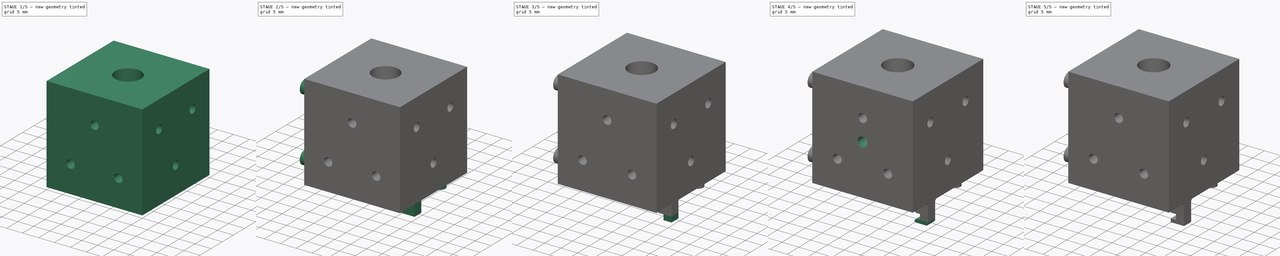
[diagram: build sequence overview — one tinted view per stage of 5, left to right]
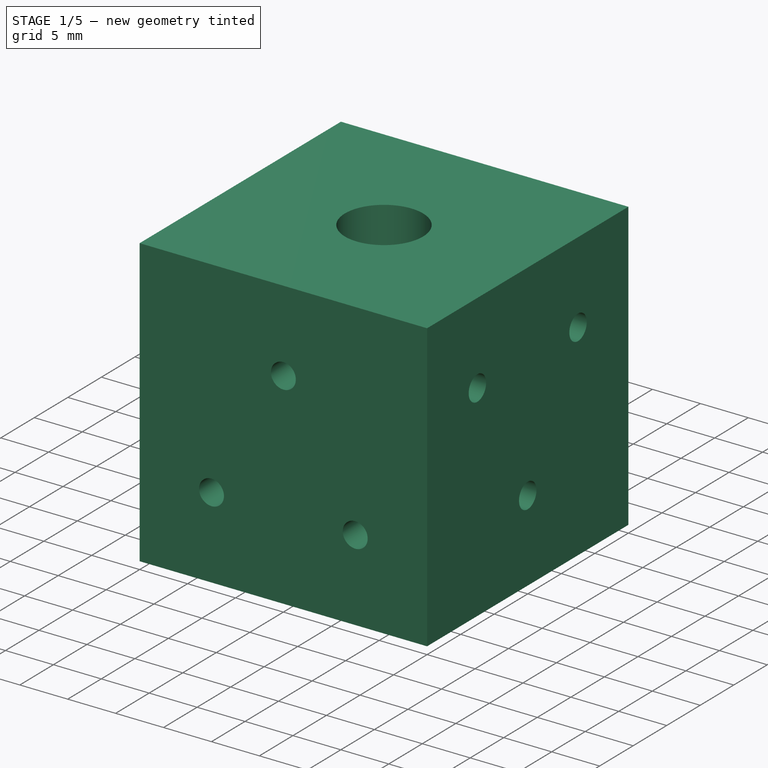
[diagram: stage 1 of 5 — iso view after this stage's code; geometry added in this stage tinted green]
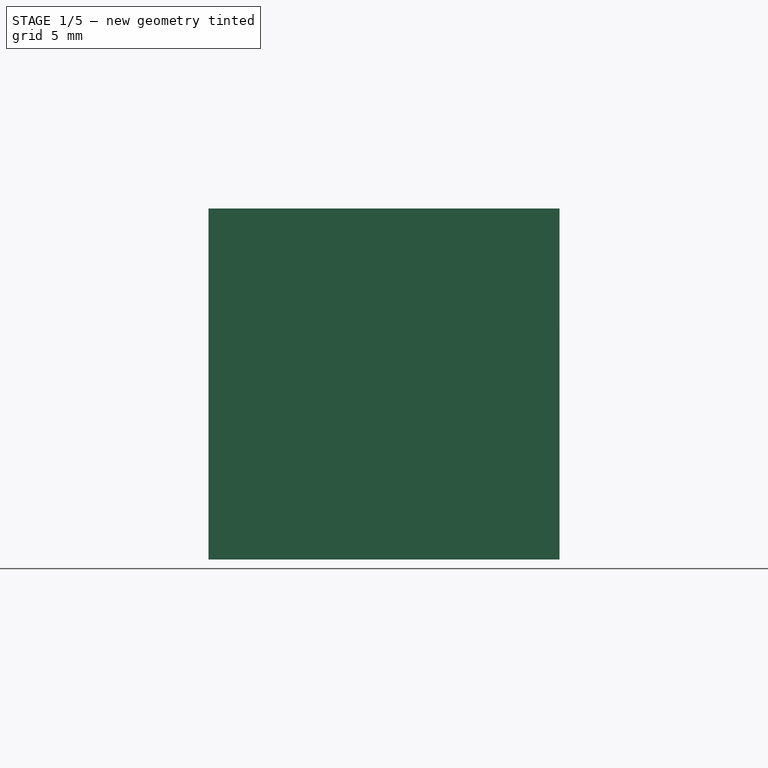
[diagram: stage 1 of 5 — front view after this stage's code; geometry added in this stage tinted green]
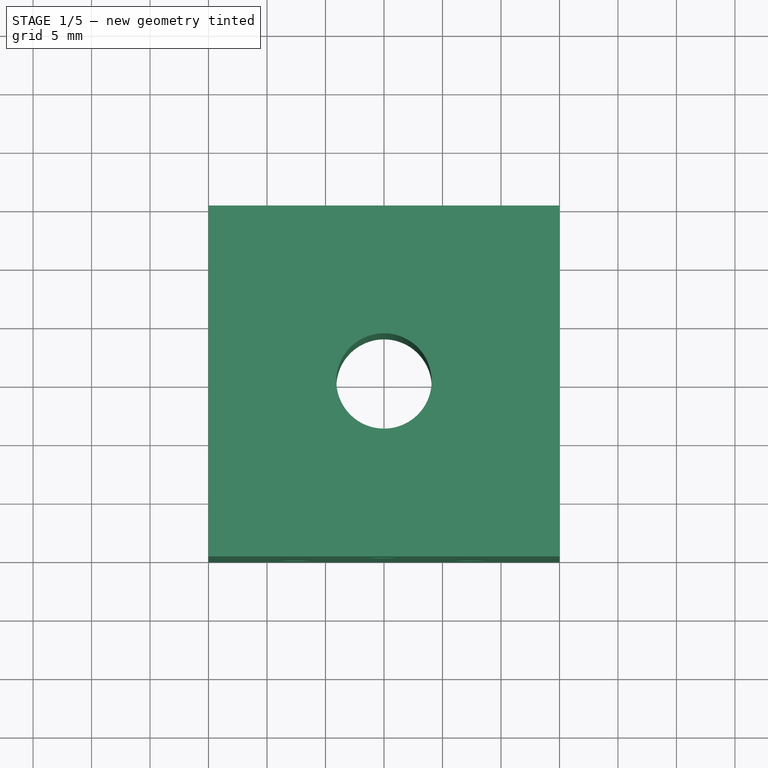
[diagram: stage 1 of 5 — top view after this stage's code; geometry added in this stage tinted green]
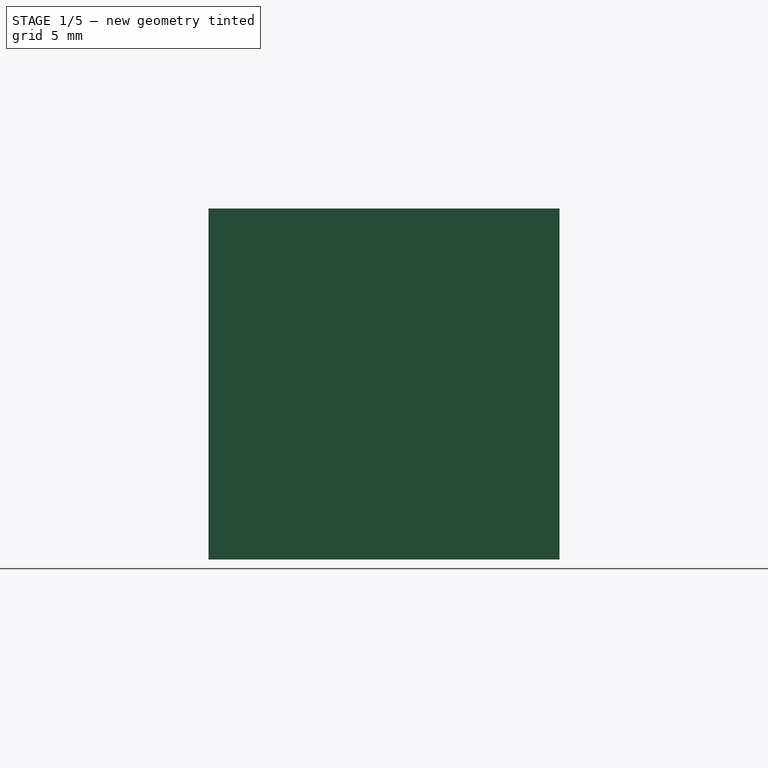
[diagram: stage 1 of 5 — right view after this stage's code; geometry added in this stage tinted green]
FCSTD DOCUMENT  (FreeCAD 0.18R16110 (Git))
Label: Cuerpo
License: All rights reserved
LicenseURL: http://en.wikipedia.org/wiki/All_rights_reserved
objects: Sketcher::SketchObject×17, PartDesign::Pocket×12, PartDesign::Pad×5, PartDesign::PolarPattern×1, PartDesign::Line×1, PartDesign::Chamfer×1, PartDesign::Body×1
note: 55 computed .brp shape members not serialized (recipe doc carries the construction recipe); baked Part::Feature solids carry a one-line shape summary decoded from their .brp

FEATURE [Sketcher::SketchObject] Sketch105
  MapMode = 5
  Placement = pos=(0,0,30) rot=(0,0,1;0rad)
  sketch-geometry (12):
    g0: LineSegment [constr] StartX=-15 StartY=15 StartZ=0 EndX=15 EndY=15 EndZ=0
    g1: LineSegment [constr] StartX=15 StartY=15 StartZ=0 EndX=15 EndY=-15 EndZ=0
    g2: LineSegment [constr] StartX=15 StartY=-15 StartZ=0 EndX=-15 EndY=-15 EndZ=0
    g3: LineSegment [constr] StartX=-15 StartY=-15 StartZ=0 EndX=-15 EndY=15 EndZ=0
    g4: LineSegment [constr] StartX=15 StartY=15 StartZ=0 EndX=-15 EndY=-15 EndZ=0
    g5: LineSegment [constr] StartX=15 StartY=-15 StartZ=0 EndX=0 EndY=0 EndZ=0
    g6: LineSegment [constr] StartX=0.424621 StartY=0.424621 StartZ=0 EndX=0.424621 EndY=-0.424621 EndZ=0
    g7: LineSegment [constr] StartX=0.424621 StartY=-0.424621 StartZ=0 EndX=-0.424621 EndY=-0.424621 EndZ=0
    g8: Circle CenterX=0.424621 CenterY=-0.424621 CenterZ=0 NormalX=0 NormalY=0 NormalZ=1 AngleXU=0 Radius=1.45
    g9: Circle CenterX=-0.424621 CenterY=-0.424621 CenterZ=0 NormalX=0 NormalY=0 NormalZ=1 AngleXU=0 Radius=1.45
    g10: Circle CenterX=0.424621 CenterY=0.424621 CenterZ=0 NormalX=0 NormalY=0 NormalZ=1 AngleXU=0 Radius=1.45
    g11: GeomPoint X=-7 Y=7 Z=0
  constraints (30):
    c: Coincident(g0,g1)
    c: Coincident(g1,g2)
    c: Coincident(g2,g3)
    c: Coincident(g3,g0)
    c: Horizontal(g0)
    c: Horizontal(g2)
    c: Vertical(g1)
    c: Vertical(g3)
    c: DistanceX(g2,g2) = 30
    c: DistanceY(g3,g3) = 30
    c: DistanceX(g0,g-1) = 15
    c: DistanceY(g-1,g0) = 15
    c: Coincident(g4,g0)
    c: Coincident(g4,g2)
    c: Coincident(g5,g-1)
    c: Coincident(g5,g1)
    c: PointOnObject(g7,g4)
    c: PointOnObject(g6,g5)
    c: Coincident(g7,g6)
    c: PointOnObject(g6,g4)
    c: Vertical(g6)
    c: Horizontal(g7)
    c: Radius(g10) = 1.45
    c: Radius(g8) = 1.45
    c: Radius(g9) = 1.45
    c: Coincident(g9,g7)
    c: Coincident(g8,g6)
    c: Coincident(g10,g6)
    c: PointOnObject(g11,g5)
    c: Distance(g11,g8) = 10.5
FEATURE [Sketcher::SketchObject] Sketch124
  MapMode = 5
  Support = -> [XY_Plane001]
  sketch-geometry (6):
    g0: LineSegment StartX=-15 StartY=15 StartZ=0 EndX=15 EndY=15 EndZ=0
    g1: LineSegment StartX=15 StartY=15 StartZ=0 EndX=15 EndY=-15 EndZ=0
    g2: LineSegment StartX=15 StartY=-15 StartZ=0 EndX=-15 EndY=-15 EndZ=0
    g3: LineSegment StartX=-15 StartY=-15 StartZ=0 EndX=-15 EndY=15 EndZ=0
    g4: ArcOfCircle CenterX=0 CenterY=0 CenterZ=0 NormalX=0 NormalY=0 NormalZ=1 AngleXU=0 Radius=4.075 StartAngle=1.81873 EndAngle=7.60605
    g5: ArcOfCircle CenterX=0 CenterY=0 CenterZ=0 NormalX=0 NormalY=0 NormalZ=1 AngleXU=0 Radius=4.075 StartAngle=1.32287 EndAngle=1.81873
  constraints (17):
    c: Coincident(g1,g2)
    c: Coincident(g2,g3)
    c: Coincident(g3,g0)
    c: Horizontal(g2)
    c: Vertical(g1)
    c: DistanceY(g1,g1) = 30
    c: DistanceX(g2,g2) = 30
    c: Symmetric(g0,g2,g-1)
    c: Symmetric(g0,g1,g-2)
    c: Coincident(g4,g-1)
    c: Symmetric(g4,g4,g-2)
    c: DistanceX(g4,g4) = 2
    c: Coincident(g0,g1)
    c: Coincident(g5,g4)
    c: Coincident(g4,g5)
    c: Coincident(g5,g4)
    c: Diameter(g4) = 8.15
FEATURE [PartDesign::Pad] Pad
  Length = 30
  Length2 = 100
  Offset = 13
  Profile = -> Sketch124
  Type = 0
FEATURE [Sketcher::SketchObject] Sketch007
  MapMode = 5
  Placement = pos=(15,0,0) rot=(0.57735,0.57735,0.57735;2.0944rad)
  Support = -> [Pad]
  sketch-geometry (4):
    g0: Circle CenterX=-7.5 CenterY=21.5 CenterZ=0 NormalX=0 NormalY=0 NormalZ=1 AngleXU=0 Radius=1.3
    g1: Circle CenterX=7.5 CenterY=21.5 CenterZ=0 NormalX=0 NormalY=0 NormalZ=1 AngleXU=0 Radius=1.3
    g2: Circle CenterX=0 CenterY=8.5 CenterZ=0 NormalX=0 NormalY=0 NormalZ=1 AngleXU=0 Radius=1.3
    g3: LineSegment [constr] StartX=-7.5 StartY=21.5 StartZ=0 EndX=7.5 EndY=21.5 EndZ=0
  constraints (10):
    c: DistanceY(g-1,g2) = 8.5
    c: Radius(g2) = 1.3
    c: Radius(g1) = 1.3
    c: Radius(g0) = 1.3
    c: Coincident(g1,g3)
    c: Coincident(g3,g0)
    c: Symmetric(g1,g0,g-2)
    c: DistanceY(g-1,g1) = 21.5
    c: DistanceX(g0,g1) = 15
    c: PointOnObject(g2,g-2)
FEATURE [PartDesign::Pocket] Pocket
  BaseFeature = -> Pad
  Length = 8
  Length2 = 100
  Profile = -> Sketch007
  Type = 0
FEATURE [Sketcher::SketchObject] Sketch002
  MapMode = 5
  Placement = pos=(0,-15,0) rot=(1,0,0;1.5708rad)
  Support = -> [Pocket]
  sketch-geometry (4):
    g0: Circle CenterX=0 CenterY=21.5 CenterZ=0 NormalX=0 NormalY=0 NormalZ=1 AngleXU=0 Radius=1.3
    g1: Circle CenterX=-7.5 CenterY=8.5 CenterZ=0 NormalX=0 NormalY=0 NormalZ=1 AngleXU=0 Radius=1.3
    g2: Circle CenterX=7.5 CenterY=8.5 CenterZ=0 NormalX=0 NormalY=0 NormalZ=1 AngleXU=0 Radius=1.3
    g3: LineSegment [constr] StartX=-7.5 StartY=8.5 StartZ=0 EndX=7.5 EndY=8.5 EndZ=0
  constraints (10):
    c: Symmetric(g2,g1,g-2)
    c: Coincident(g3,g1)
    c: Coincident(g2,g3)
    c: DistanceX(g1,g2) = 15
    c: DistanceY(g-1,g2) = 8.5
    c: PointOnObject(g0,g-2)
    c: Radius(g0) = 1.3
    c: Radius(g1) = 1.3
    c: Radius(g2) = 1.3
    c: DistanceY(g-1,g0) = 21.5
FEATURE [PartDesign::Pocket] Pocket001
  BaseFeature = -> Pocket
  Length = 8
  Length2 = 100
  Profile = -> Sketch002
  Type = 0
FEATURE [PartDesign::Pocket] Pocket041
  BaseFeature = -> Pocket001
  Length = 5
  Length2 = 100
  Profile = -> Sketch105
  Type = 0
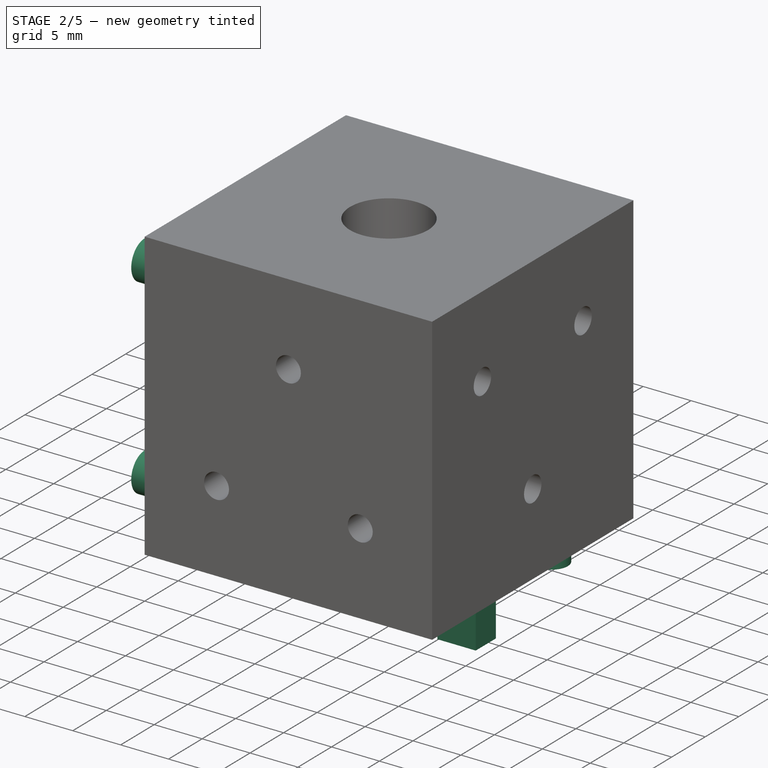
[diagram: stage 2 of 5 — iso view after this stage's code; geometry added in this stage tinted green]
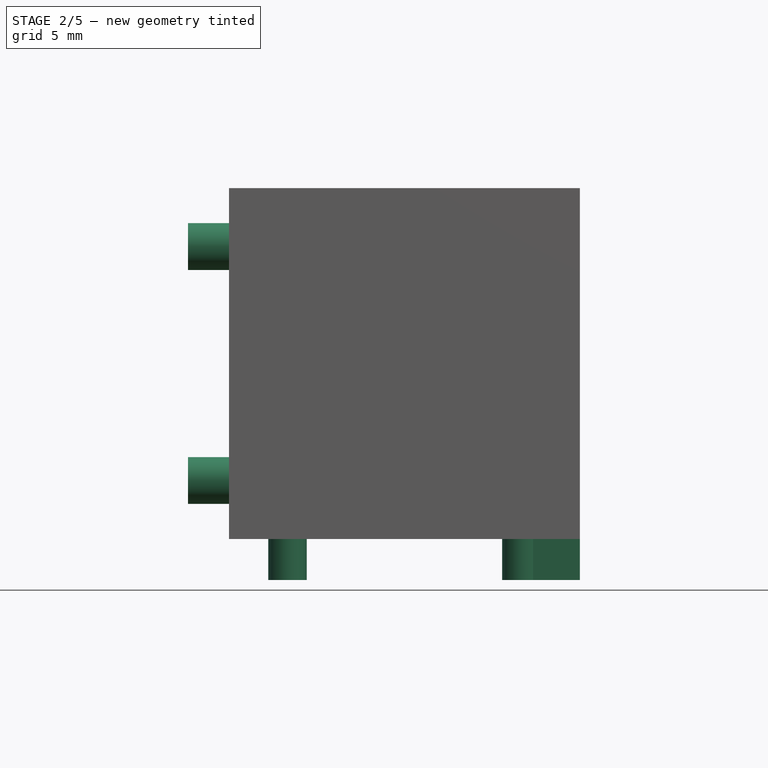
[diagram: stage 2 of 5 — front view after this stage's code; geometry added in this stage tinted green]
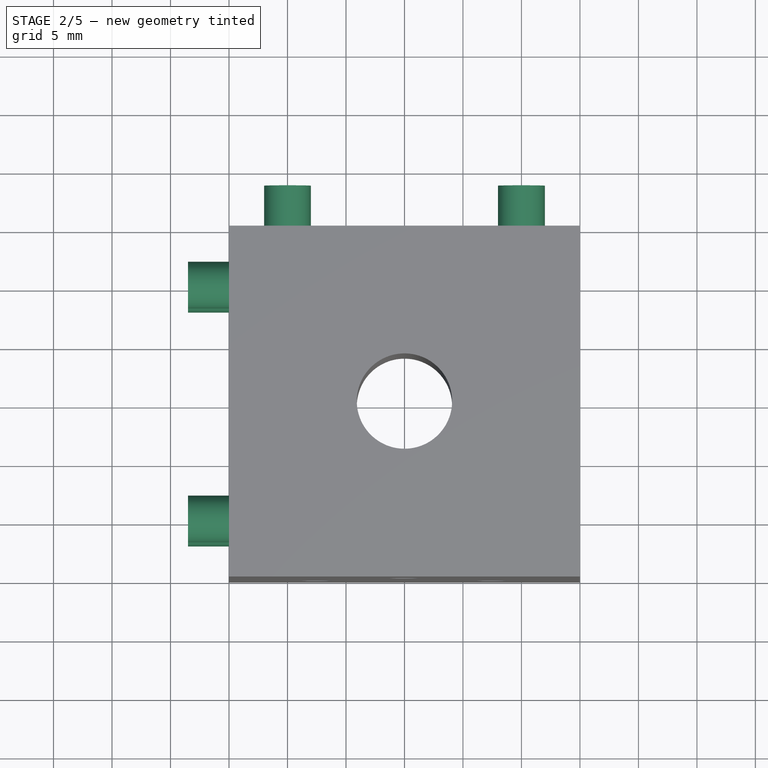
[diagram: stage 2 of 5 — top view after this stage's code; geometry added in this stage tinted green]
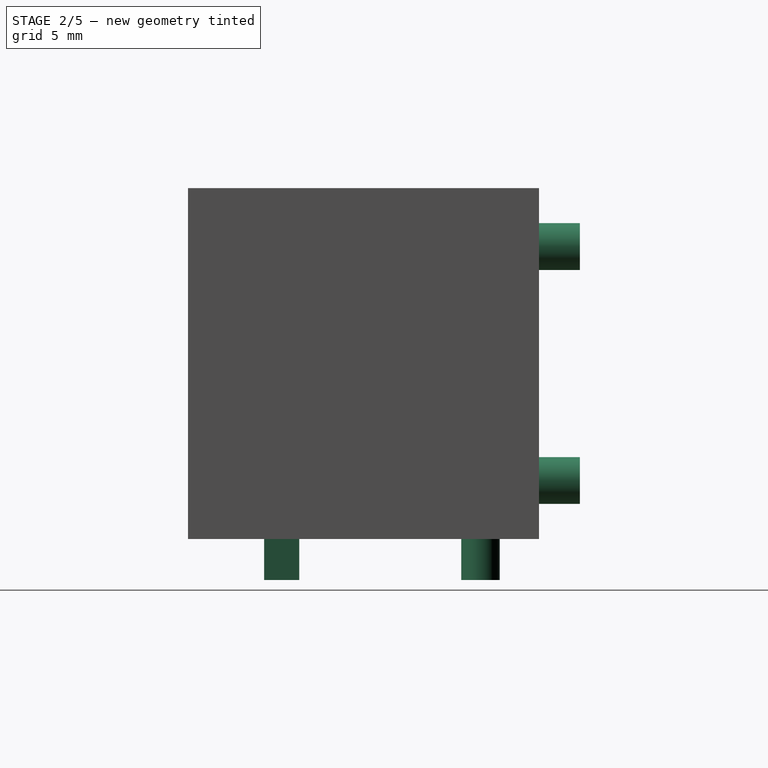
[diagram: stage 2 of 5 — right view after this stage's code; geometry added in this stage tinted green]
FEATURE [Sketcher::SketchObject] Sketch165
  MapMode = 5
  Placement = pos=(0,0,0) rot=(1,0,0;3.14159rad)
  Support = -> [Pocket041]
  sketch-geometry (4):
    g0: LineSegment StartX=-10.15 StartY=8.5 StartZ=0 EndX=10.15 EndY=8.5 EndZ=0
    g1: LineSegment StartX=10.15 StartY=8.5 StartZ=0 EndX=10.15 EndY=-8 EndZ=0
    g2: LineSegment StartX=10.15 StartY=-8 StartZ=0 EndX=-10.15 EndY=-8 EndZ=0
    g3: LineSegment StartX=-10.15 StartY=-8 StartZ=0 EndX=-10.15 EndY=8.5 EndZ=0
  constraints (11):
    c: Coincident(g0,g1)
    c: Coincident(g1,g2)
    c: Coincident(g2,g3)
    c: Coincident(g3,g0)
    c: Horizontal(g2)
    c: Vertical(g1)
    c: Vertical(g3)
    c: DistanceY(g1,g1) = 16.5
    c: DistanceX(g0,g0) = 20.3
    c: Symmetric(g0,g0,g-2)
    c: DistanceY(g-1,g0) = 8.5
FEATURE [Sketcher::SketchObject] Sketch169
  MapMode = 5
  Placement = pos=(0,0,4) rot=(1,0,0;3.14159rad)
  sketch-geometry (4):
    g0: LineSegment StartX=-10 StartY=8.5 StartZ=0 EndX=10 EndY=8.5 EndZ=0
    g1: LineSegment StartX=10 StartY=8.5 StartZ=0 EndX=10 EndY=5.5 EndZ=0
    g2: LineSegment StartX=10 StartY=5.5 StartZ=0 EndX=-10 EndY=5.5 EndZ=0
    g3: LineSegment StartX=-10 StartY=5.5 StartZ=0 EndX=-10 EndY=8.5 EndZ=0
  constraints (8):
    c: Coincident(g0,g1)
    c: Coincident(g1,g2)
    c: Coincident(g2,g3)
    c: Coincident(g3,g0)
    c: Horizontal(g2)
    c: Vertical(g1)
    c: Vertical(g3)
    c: DistanceY(g1,g1) = 3
FEATURE [PartDesign::Pocket] Pocket061
  BaseFeature = -> Pocket041
  Length = 4
  Length2 = 100
  Profile = -> Sketch165
  Type = 0
FEATURE [Sketcher::SketchObject] Sketch
  MapMode = 5
  Placement = pos=(-15,0,0) rot=(0.57735,-0.57735,-0.57735;2.0944rad)
  Support = -> [Pocket061]
  sketch-geometry (9):
    g0: Circle CenterX=-10 CenterY=25 CenterZ=0 NormalX=0 NormalY=0 NormalZ=1 AngleXU=0 Radius=2
    g1: Circle CenterX=-10 CenterY=25 CenterZ=0 NormalX=0 NormalY=0 NormalZ=1 AngleXU=0 Radius=0.975
    g2: GeomPoint X=0 Y=15 Z=0
    g3: Circle CenterX=10 CenterY=25 CenterZ=0 NormalX=0 NormalY=0 NormalZ=1 AngleXU=0 Radius=2
    g4: Circle CenterX=10 CenterY=25 CenterZ=0 NormalX=0 NormalY=0 NormalZ=1 AngleXU=0 Radius=0.975
    g5: Circle CenterX=10 CenterY=5 CenterZ=0 NormalX=0 NormalY=0 NormalZ=1 AngleXU=0 Radius=2
    g6: Circle CenterX=10 CenterY=5 CenterZ=0 NormalX=0 NormalY=0 NormalZ=1 AngleXU=0 Radius=0.975
    g7: Circle CenterX=-10 CenterY=5 CenterZ=0 NormalX=0 NormalY=0 NormalZ=1 AngleXU=0 Radius=2
    g8: Circle CenterX=-10 CenterY=5 CenterZ=0 NormalX=0 NormalY=0 NormalZ=1 AngleXU=0 Radius=0.975
  constraints (22):
    c: Diameter(g1) = 1.95
    c: Diameter(g0) = 4
    c: Coincident(g1,g0)
    c: DistanceX(g0,g-1) = 10
    c: PointOnObject(g2,g-2)
    c: DistanceY(g-1,g2) = 15
    c: DistanceY(g2,g0) = 10
    c: Diameter(g4) = 1.95
    c: Diameter(g3) = 4
    c: Coincident(g4,g3)
    c: Diameter(g6) = 1.95
    c: Diameter(g5) = 4
    c: Coincident(g6,g5)
    c: Diameter(g8) = 1.95
    c: Diameter(g7) = 4
    c: Coincident(g8,g7)
    c: DistanceY(g2,g3) = 10
    c: DistanceX(g2,g3) = 10
    c: DistanceX(g7,g2) = 10
    c: DistanceX(g2,g5) = 10
    c: DistanceY(g7,g2) = 10
    c: DistanceY(g5,g2) = 10
FEATURE [PartDesign::Pad] Pad001
  BaseFeature = -> Pocket061
  Length = 3.5
  Length2 = 100
  Profile = -> Sketch
  Type = 0
FEATURE [PartDesign::PolarPattern] PolarPattern
  Angle = 270
  Axis = -> Z_Axis001
  BaseFeature = -> Pad001
  Occurrences = 2
  Originals = -> [Pad001]
FEATURE [PartDesign::Line] DatumLine
  AttacherType = Attacher::AttachEngineLine
  AttachmentOffset = pos=(0,0,15) rot=(-1,0,0;1.5708rad)
  MapMode = 42
  Placement = pos=(4e-16,0.144737,15) rot=(-1,0,0;1.5708rad)
  Support = -> [Pad001]
FEATURE [Sketcher::SketchObject] Sketch166
  ExternalGeometry = -> [PolarPattern]
  MapMode = 5
  Placement = pos=(0,0,0) rot=(1,0,0;3.14159rad)
  Support = -> [PolarPattern]
  sketch-geometry (8):
    g0: Circle CenterX=-10 CenterY=-10 CenterZ=0 NormalX=0 NormalY=0 NormalZ=1 AngleXU=0 Radius=0.975
    g1: LineSegment StartX=11 StartY=8.5 StartZ=0 EndX=15 EndY=8.5 EndZ=0
    g2: LineSegment StartX=15 StartY=8.5 StartZ=0 EndX=15 EndY=5.5 EndZ=0
    g3: LineSegment StartX=11 StartY=5.5 StartZ=0 EndX=11 EndY=8.5 EndZ=0
    g4: Circle CenterX=10 CenterY=-10 CenterZ=0 NormalX=0 NormalY=0 NormalZ=1 AngleXU=0 Radius=0.975
    g5: LineSegment StartX=15 StartY=5.5 StartZ=0 EndX=11 EndY=5.5 EndZ=0
    g6: Circle CenterX=10 CenterY=-10 CenterZ=0 NormalX=0 NormalY=0 NormalZ=1 AngleXU=0 Radius=1.65
    g7: Circle CenterX=-10 CenterY=-10 CenterZ=0 NormalX=0 NormalY=0 NormalZ=1 AngleXU=0 Radius=1.65
  constraints (21):
    c: Diameter(g0) = 1.95
    c: DistanceX(g0,g-1) = 10
    c: DistanceY(g0,g-1) = 10
    c: Coincident(g1,g2)
    c: Vertical(g2)
    c: Diameter(g4) = 1.95
    c: Coincident(g1,g3)
    c: Horizontal(g1)
    c: PointOnObject(g2,g-4)
    c: DistanceY(g2,g2) = 3
    c: Symmetric(g4,g0,g-2)
    c: Vertical(g3)
    c: Perpendicular(g3,g5)
    c: Coincident(g3,g5)
    c: DistanceX(g1,g1) = 4
    c: Diameter(g6) = 3.3
    c: Diameter(g7) = 3.3
    c: Coincident(g7,g0)
    c: Coincident(g6,g4)
    c: Coincident(g5,g2)
    c: PointOnObject(g-5,g1)
FEATURE [PartDesign::Pad] Pad002
  BaseFeature = -> PolarPattern
  Length = 3.5
  Length2 = 100
  Profile = -> Sketch166
  Type = 0
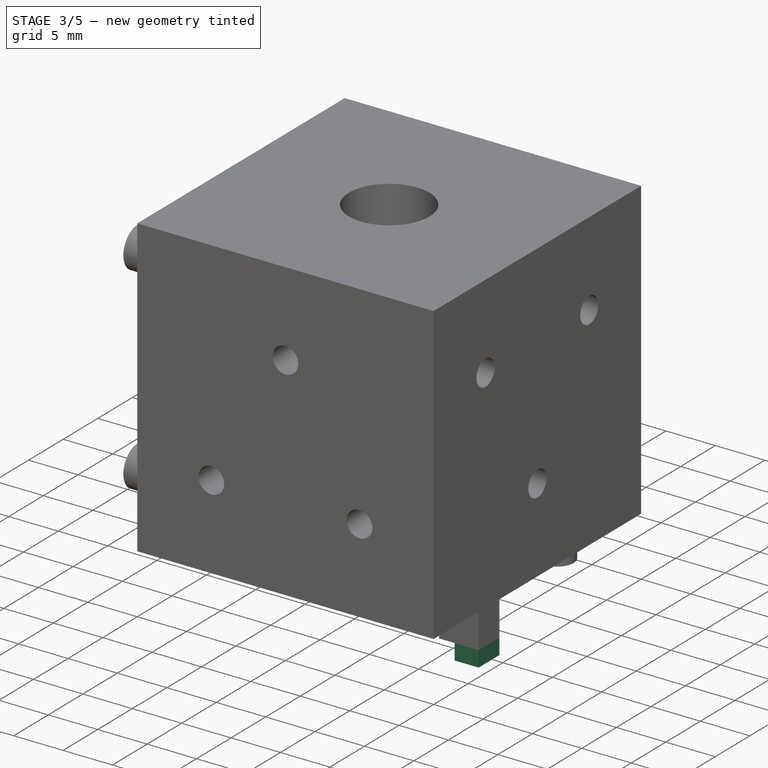
[diagram: stage 3 of 5 — iso view after this stage's code; geometry added in this stage tinted green]
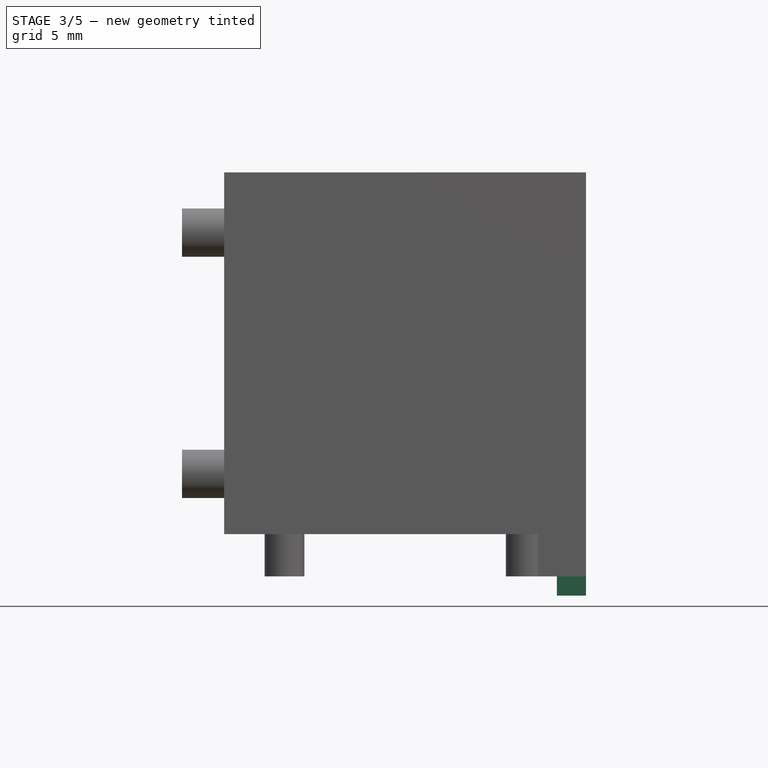
[diagram: stage 3 of 5 — front view after this stage's code; geometry added in this stage tinted green]
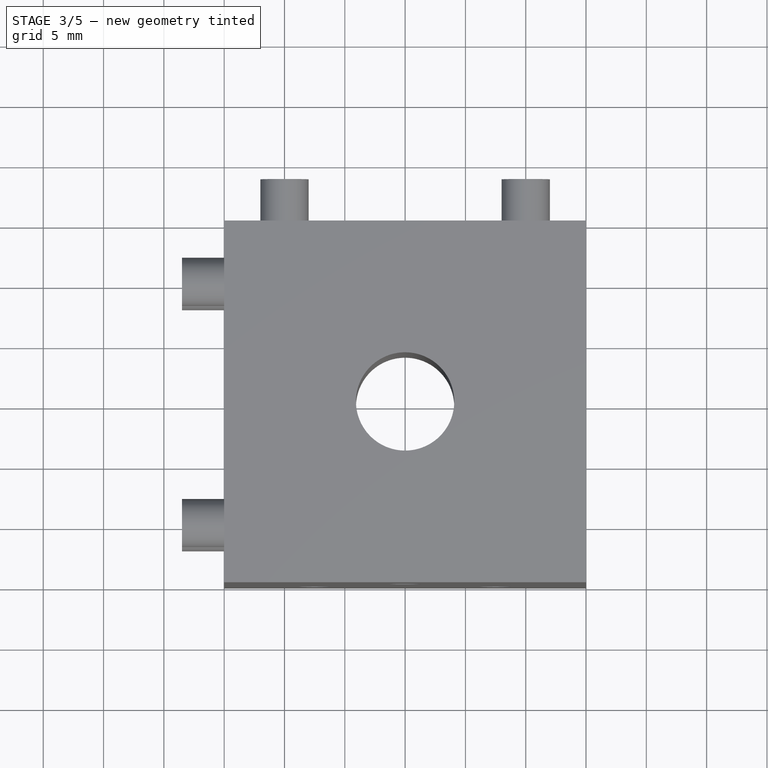
[diagram: stage 3 of 5 — top view after this stage's code; geometry added in this stage tinted green]
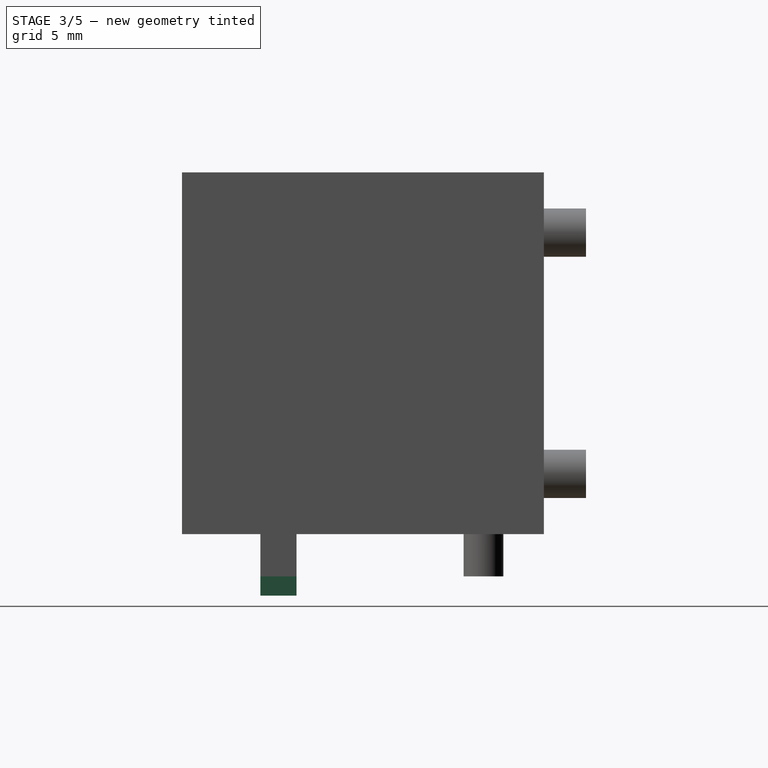
[diagram: stage 3 of 5 — right view after this stage's code; geometry added in this stage tinted green]
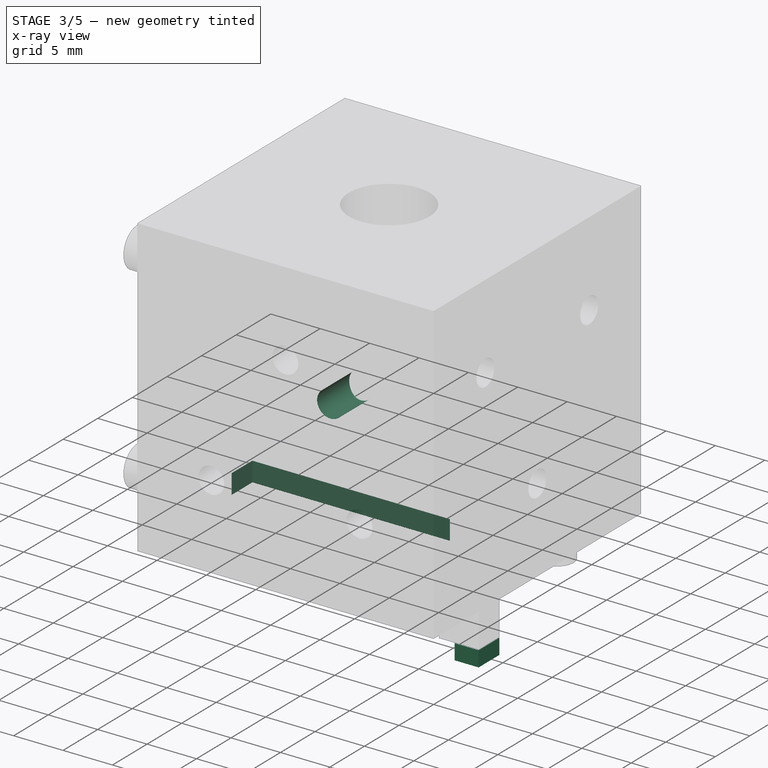
[diagram: stage 3 of 5 — x-ray composite at the iso view; earlier geometry ghosted, this stage's added geometry solid]
FEATURE [PartDesign::Pocket] Pocket062
  BaseFeature = -> Pad002
  Length = 2
  Length2 = 100
  Profile = -> Sketch169
  Type = 0
FEATURE [Sketcher::SketchObject] Sketch170
  MapMode = 5
  Placement = pos=(0,-8.5,0) rot=(1,0,0;1.5708rad)
  Support = -> [Pocket062]
  sketch-geometry (1):
    g0: Circle CenterX=0 CenterY=15 CenterZ=0 NormalX=0 NormalY=0 NormalZ=1 AngleXU=0 Radius=1.35
  constraints (3):
    c: Diameter(g0) = 2.7
    c: PointOnObject(g0,g-2)
    c: DistanceY(g-1,g0) = 15
FEATURE [PartDesign::Pocket] Pocket063
  BaseFeature = -> Pocket062
  Length = 12
  Length2 = 100
  Profile = -> Sketch170
  Type = 0
FEATURE [Sketcher::SketchObject] Sketch172
  ExternalGeometry = -> [Pad002]
  MapMode = 5
  Placement = pos=(0,0,-3.5) rot=(1,0,0;3.14159rad)
  Support = -> [Pad002]
  sketch-geometry (4):
    g0: LineSegment StartX=12.58 StartY=8.5 StartZ=0 EndX=15 EndY=8.5 EndZ=0
    g1: LineSegment StartX=15 StartY=8.5 StartZ=0 EndX=15 EndY=5.5 EndZ=0
    g2: LineSegment StartX=15 StartY=5.5 StartZ=0 EndX=12.58 EndY=5.5 EndZ=0
    g3: LineSegment StartX=12.58 StartY=5.5 StartZ=0 EndX=12.58 EndY=8.5 EndZ=0
  constraints (10):
    c: Coincident(g0,g1)
    c: Coincident(g1,g2)
    c: Coincident(g2,g3)
    c: Coincident(g3,g0)
    c: Horizontal(g0)
    c: Horizontal(g2)
    c: Vertical(g3)
    c: DistanceX(g0,g0) = 2.42
    c: Coincident(g0,g-3)
    c: Coincident(g-3,g1)
FEATURE [PartDesign::Pad] Pad003
  BaseFeature = -> Pocket063
  Length = 1.6
  Length2 = 100
  Profile = -> Sketch172
  Type = 0
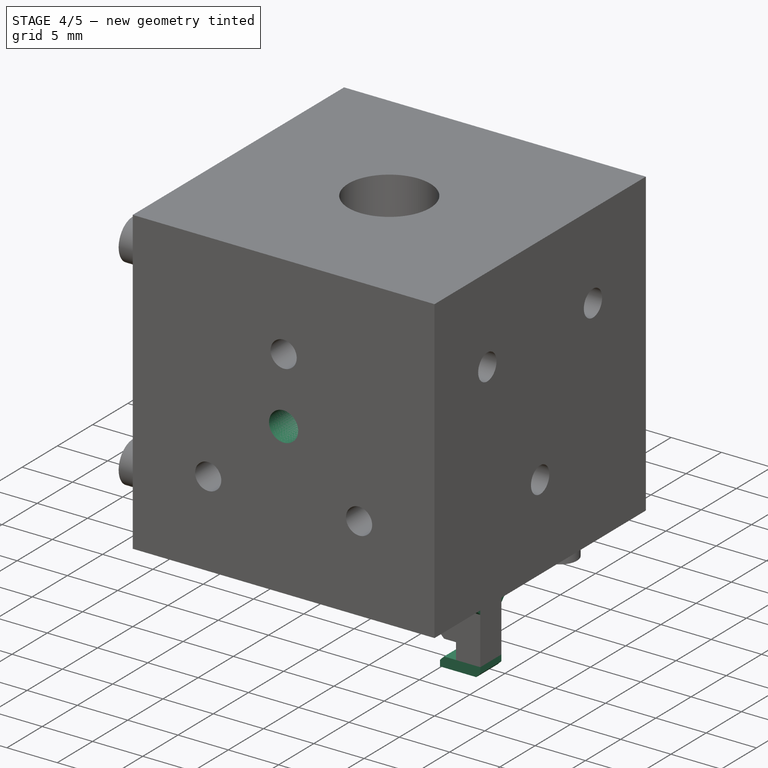
[diagram: stage 4 of 5 — iso view after this stage's code; geometry added in this stage tinted green]
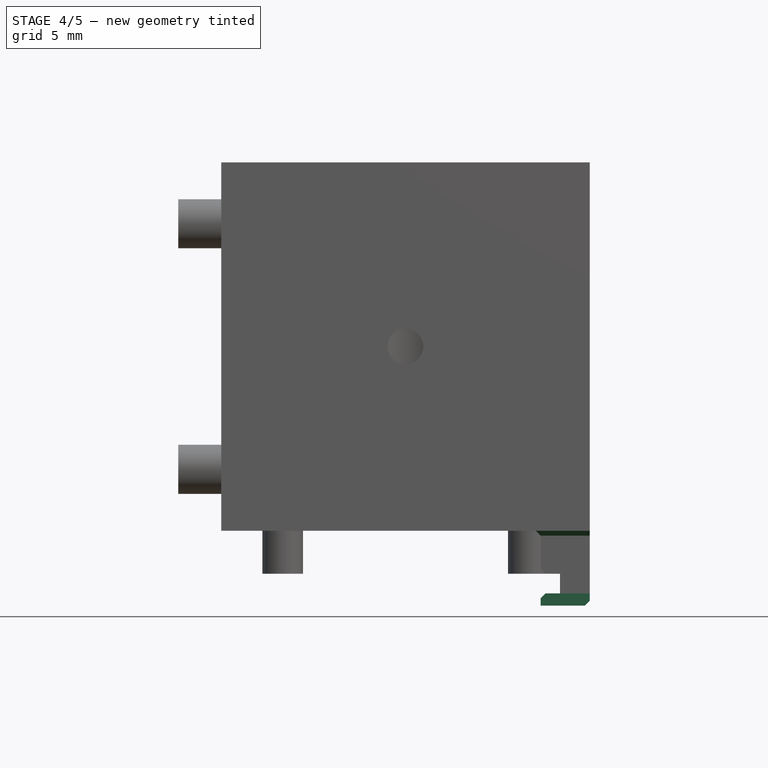
[diagram: stage 4 of 5 — front view after this stage's code; geometry added in this stage tinted green]
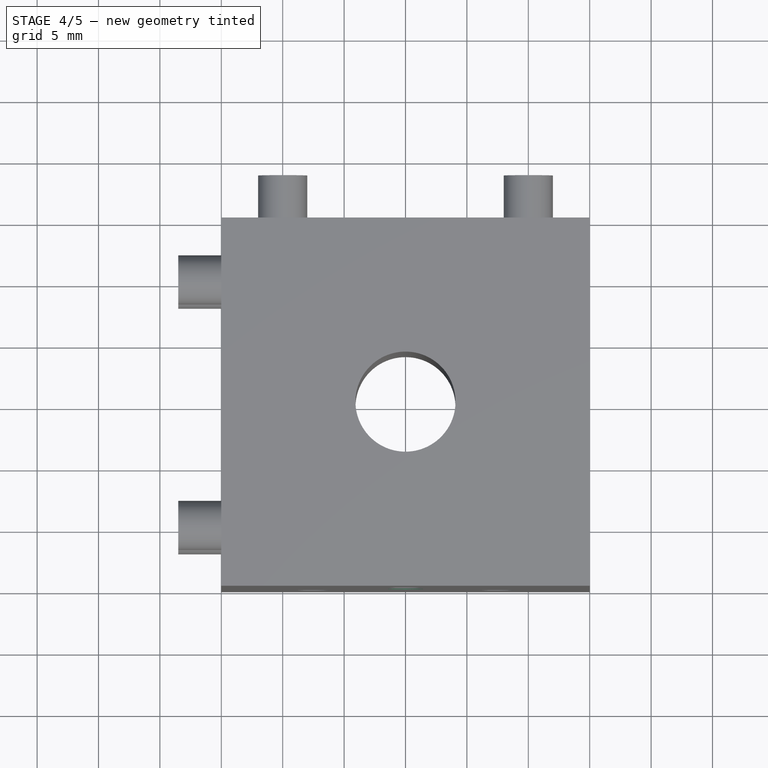
[diagram: stage 4 of 5 — top view after this stage's code; geometry added in this stage tinted green]
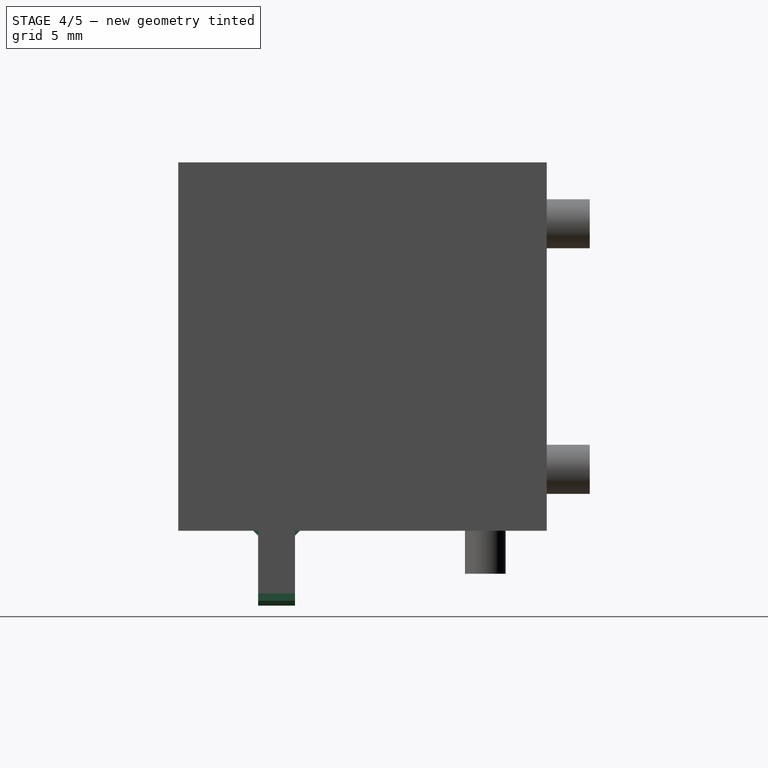
[diagram: stage 4 of 5 — right view after this stage's code; geometry added in this stage tinted green]
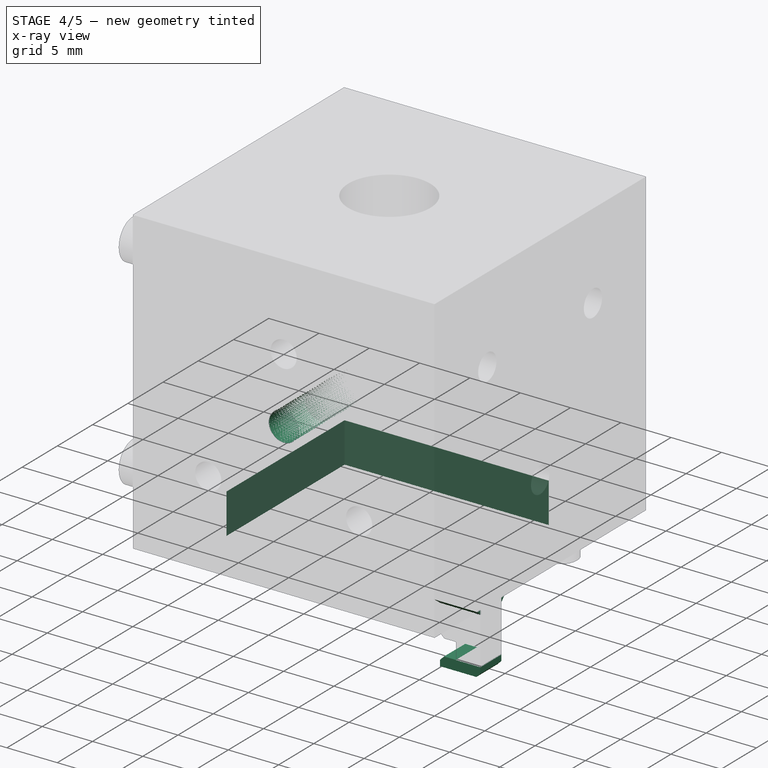
[diagram: stage 4 of 5 — x-ray composite at the iso view; earlier geometry ghosted, this stage's added geometry solid]
FEATURE [Sketcher::SketchObject] Sketch173
  ExternalGeometry = -> [Pad003]
  MapMode = 5
  Placement = pos=(0,0,-5.1) rot=(1,0,0;3.14159rad)
  Support = -> [Pad003]
  sketch-geometry (4):
    g0: LineSegment StartX=15 StartY=8.5 StartZ=0 EndX=11 EndY=8.5 EndZ=0
    g1: LineSegment StartX=11 StartY=8.5 StartZ=0 EndX=11 EndY=5.5 EndZ=0
    g2: LineSegment StartX=11 StartY=5.5 StartZ=0 EndX=15 EndY=5.5 EndZ=0
    g3: LineSegment StartX=15 StartY=5.5 StartZ=0 EndX=15 EndY=8.5 EndZ=0
  constraints (10):
    c: Coincident(g0,g1)
    c: Coincident(g1,g2)
    c: Coincident(g2,g3)
    c: Coincident(g3,g0)
    c: Horizontal(g0)
    c: Horizontal(g2)
    c: Vertical(g1)
    c: Coincident(g2,g-3)
    c: Coincident(g0,g-3)
    c: DistanceX(g0,g0) = 4
FEATURE [PartDesign::Pad] Pad004
  BaseFeature = -> Pad003
  Length = 1
  Length2 = 100
  Profile = -> Sketch173
  Type = 0
FEATURE [Sketcher::SketchObject] Sketch174
  MapMode = 5
  Placement = pos=(0,0,0) rot=(1,0,0;3.14159rad)
  sketch-geometry (4):
    g0: LineSegment StartX=-10.15 StartY=8.65 StartZ=0 EndX=10.15 EndY=8.65 EndZ=0
    g1: LineSegment StartX=10.15 StartY=8.65 StartZ=0 EndX=10.15 EndY=-8.15 EndZ=0
    g2: LineSegment StartX=10.15 StartY=-8.15 StartZ=0 EndX=-10.15 EndY=-8.15 EndZ=0
    g3: LineSegment StartX=-10.15 StartY=-8.15 StartZ=0 EndX=-10.15 EndY=8.65 EndZ=0
  constraints (11):
    c: Coincident(g0,g1)
    c: Coincident(g1,g2)
    c: Coincident(g2,g3)
    c: Coincident(g3,g0)
    c: Horizontal(g2)
    c: Vertical(g1)
    c: Vertical(g3)
    c: DistanceX(g0,g0) = 20.3
    c: DistanceY(g3,g3) = 16.8
    c: Symmetric(g0,g0,g-2)
    c: DistanceY(g-1,g0) = 8.65
FEATURE [PartDesign::Pocket] Pocket065
  BaseFeature = -> Pad004
  Length = 4
  Length2 = 100
  Profile = -> Sketch174
  Type = 0
FEATURE [PartDesign::Chamfer] Chamfer
  Base = -> Pocket065 [Edge160,Edge159,Edge64,Edge20,Edge21,Edge19]
  BaseFeature = -> Pocket065
  Size = 0.4
FEATURE [Sketcher::SketchObject] Sketch178
  MapMode = 5
  Placement = pos=(0,-15,0) rot=(1,0,0;1.5708rad)
  Support = -> [Chamfer]
  sketch-geometry (1):
    g0: Circle CenterX=0 CenterY=15 CenterZ=0 NormalX=0 NormalY=0 NormalZ=1 AngleXU=0 Radius=1.45
  constraints (3):
    c: Diameter(g0) = 2.9
    c: PointOnObject(g0,g-2)
    c: DistanceY(g-1,g0) = 15
FEATURE [PartDesign::Pocket] Pocket069
  BaseFeature = -> Chamfer
  Length = 15
  Length2 = 100
  Profile = -> Sketch178
  Type = 0
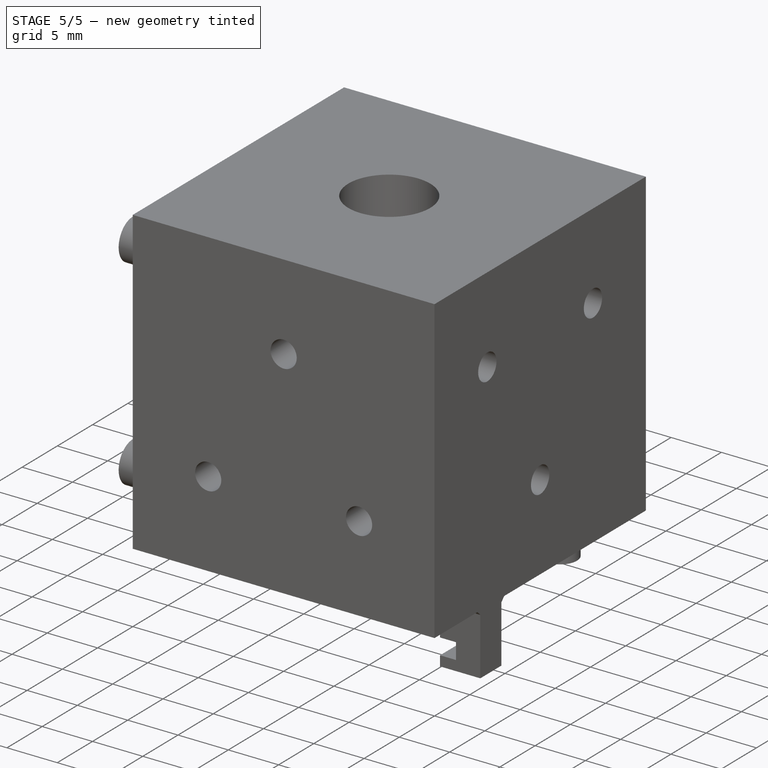
[diagram: stage 5 of 5 — iso view after this stage's code; geometry added in this stage tinted green]
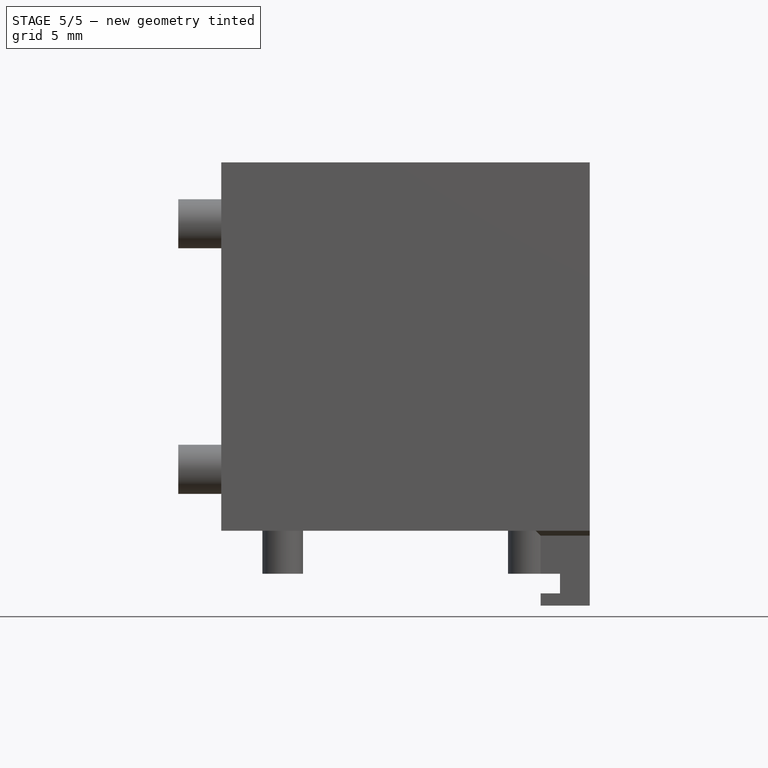
[diagram: stage 5 of 5 — front view after this stage's code; geometry added in this stage tinted green]
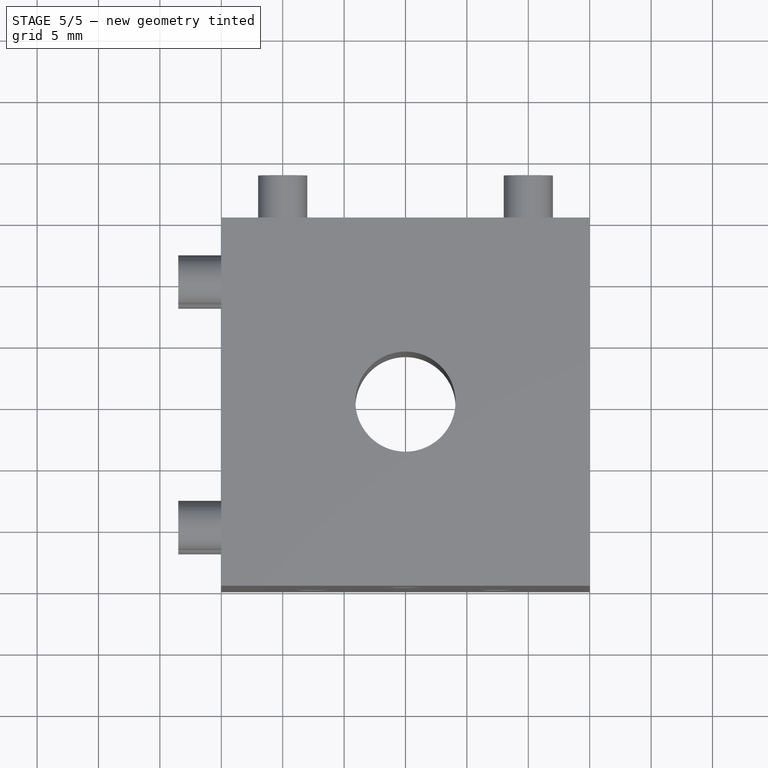
[diagram: stage 5 of 5 — top view after this stage's code; geometry added in this stage tinted green]
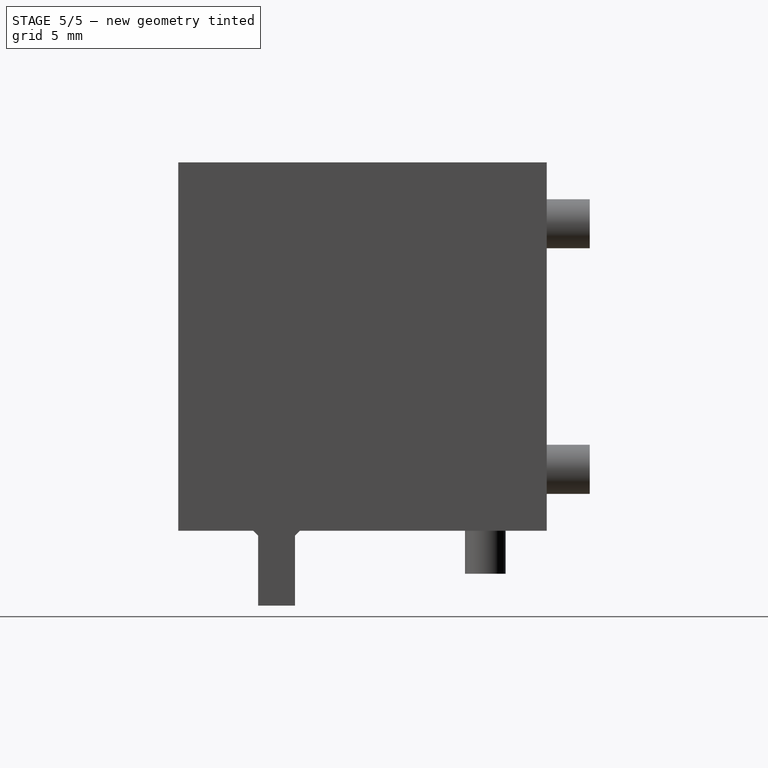
[diagram: stage 5 of 5 — right view after this stage's code; geometry added in this stage tinted green]
FEATURE [Sketcher::SketchObject] Sketch175
  MapMode = 5
  Placement = pos=(0,0,30) rot=(0,0,1;0rad)
  Support = -> [Pocket065]
  sketch-geometry (3):
    g0: Circle CenterX=-7.7 CenterY=10 CenterZ=0 NormalX=0 NormalY=0 NormalZ=1 AngleXU=0 Radius=1.35
    g1: Circle CenterX=-7.7 CenterY=-10 CenterZ=0 NormalX=0 NormalY=0 NormalZ=1 AngleXU=0 Radius=1.35
    g2: LineSegment [constr] StartX=-7.7 StartY=10 StartZ=0 EndX=-7.7 EndY=-10 EndZ=0
  constraints (7):
    c: Diameter(g0) = 2.7
    c: Diameter(g1) = 2.7
    c: Distance(g0,g1) = 20
    c: Coincident(g2,g0)
    c: Coincident(g2,g1)
    c: Symmetric(g0,g1,g-1)
    c: DistanceX(g0,g-1) = 7.7
FEATURE [PartDesign::Pocket] Pocket066
  BaseFeature = -> Pocket065
  Length = 7
  Length2 = 100
  Profile = -> Sketch175
  Type = 0
FEATURE [Sketcher::SketchObject] Sketch176
  MapMode = 5
  Placement = pos=(11,0,0) rot=(0.57735,-0.57735,-0.57735;2.0944rad)
  Support = -> [Pocket066]
  sketch-geometry (1):
    g0: Circle CenterX=0 CenterY=14.9176 CenterZ=0 NormalX=0 NormalY=0 NormalZ=1 AngleXU=0 Radius=3
  constraints (2):
    c: PointOnObject(g0,g-2)
    c: Diameter(g0) = 6
FEATURE [PartDesign::Pocket] Pocket067
  BaseFeature = -> Pocket066
  Length = 5
  Length2 = 100
  Profile = -> Sketch176
  Type = 0
FEATURE [Sketcher::SketchObject] Sketch177
  ExternalGeometry = -> [Pocket067]
  MapMode = 5
  Placement = pos=(0,-10,0) rot=(1,0,0;1.5708rad)
  Support = -> [Pocket067]
  sketch-geometry (1):
    g0: Circle CenterX=0 CenterY=14.9176 CenterZ=0 NormalX=0 NormalY=0 NormalZ=1 AngleXU=0 Radius=1.475
  constraints (2):
    c: Diameter(g0) = 2.95
    c: Coincident(g0,g-3)
FEATURE [PartDesign::Pocket] Pocket068
  BaseFeature = -> Pocket067
  Length = 5
  Length2 = 100
  Profile = -> Sketch177
  Type = 0
FEATURE [Sketcher::SketchObject] Sketch179
  ExternalGeometry = -> [Pocket069]
  MapMode = 5
  Placement = pos=(0,-15,0) rot=(1,0,0;1.5708rad)
  Support = -> [Pocket069]
  sketch-geometry (1):
    g0: Circle CenterX=0 CenterY=15 CenterZ=0 NormalX=0 NormalY=0 NormalZ=1 AngleXU=0 Radius=3
  constraints (2):
    c: Diameter(g0) = 6
    c: Coincident(g0,g-3)
FEATURE [PartDesign::Pocket] Pocket070
  BaseFeature = -> Pocket069
  Length = 5
  Length2 = 100
  Profile = -> Sketch179
  Type = 0
FEATURE [PartDesign::Body] Body001  label="Cuerpo"
  Group = -> [Sketch124,Pad,Sketch007,Pocket,Sketch002,Pocket001,Sketch105,Pocket041,Sketch165,Pocket061,Sketch,Pad001,PolarPattern,DatumLine,Sketch166,Pad002,Sketch169,Pocket062,Sketch170,Pocket063,Sketch172,Pad003,Sketch173,Pad004,Sketch174,Pocket065,Sketch175,Pocket066,Sketch176,Pocket067,Sketch177,Pocket068,Chamfer,Sketch178,Pocket069,Sketch179,Pocket070]
  Origin = -> Origin001
  Placement = pos=(0,0,0) rot=(0,1,0;3.14159rad)
  Tip = -> Pocket070
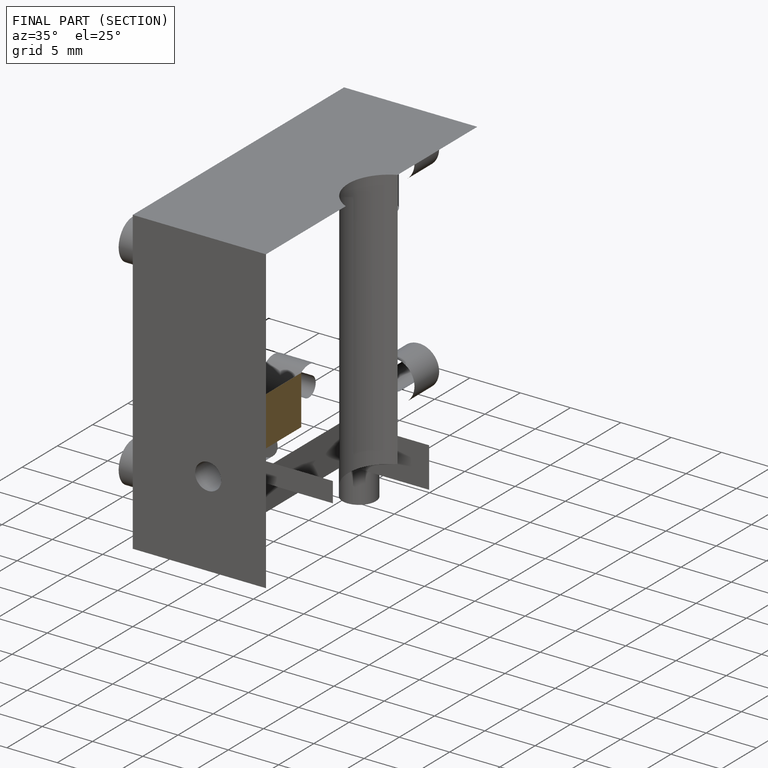
[diagram: finished part — half-section view (interior)]
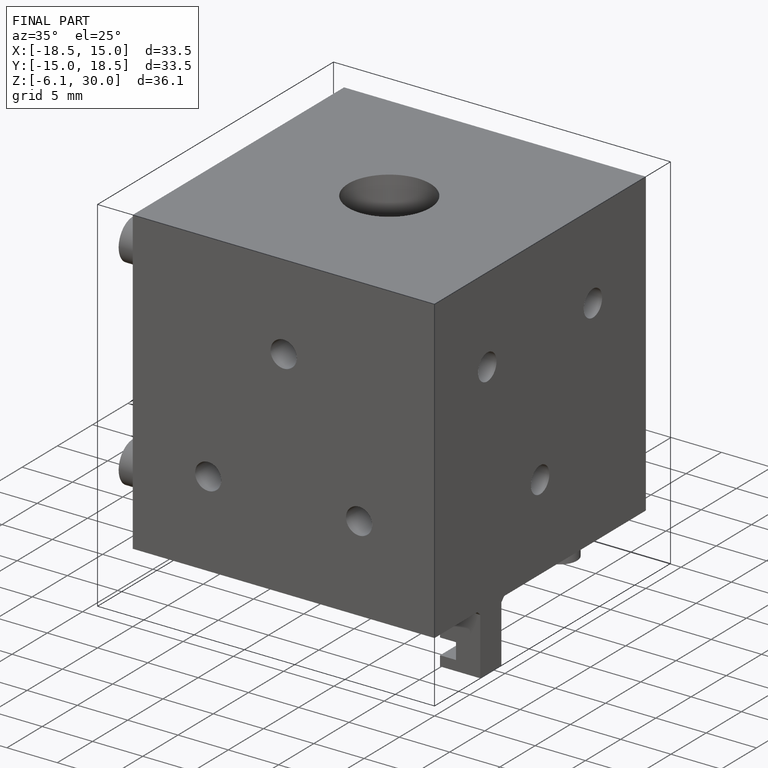
[diagram: finished part — iso view with bounding-box wireframe]
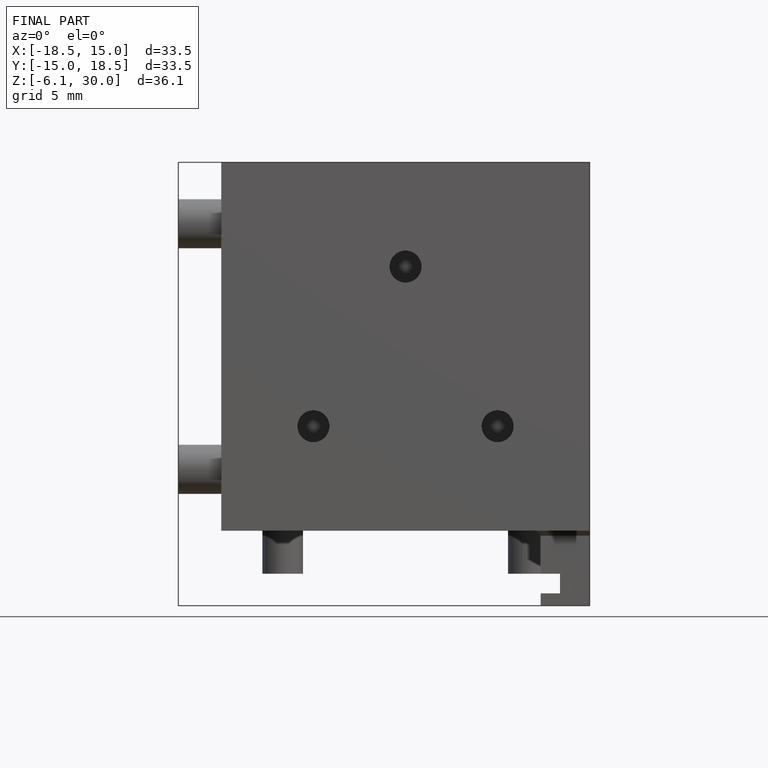
[diagram: finished part — front view with bounding-box wireframe]
